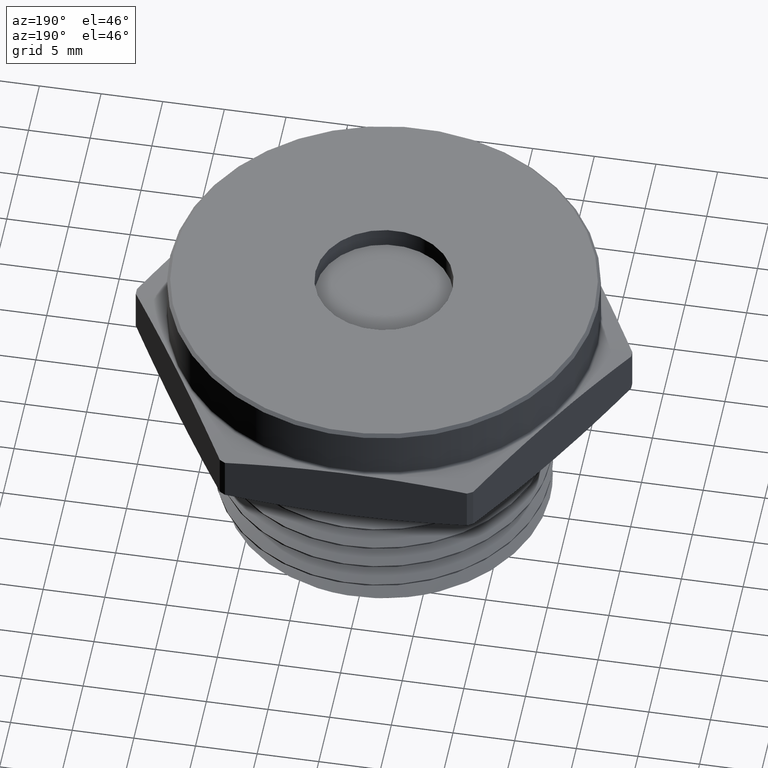
[diagram: clean part render]
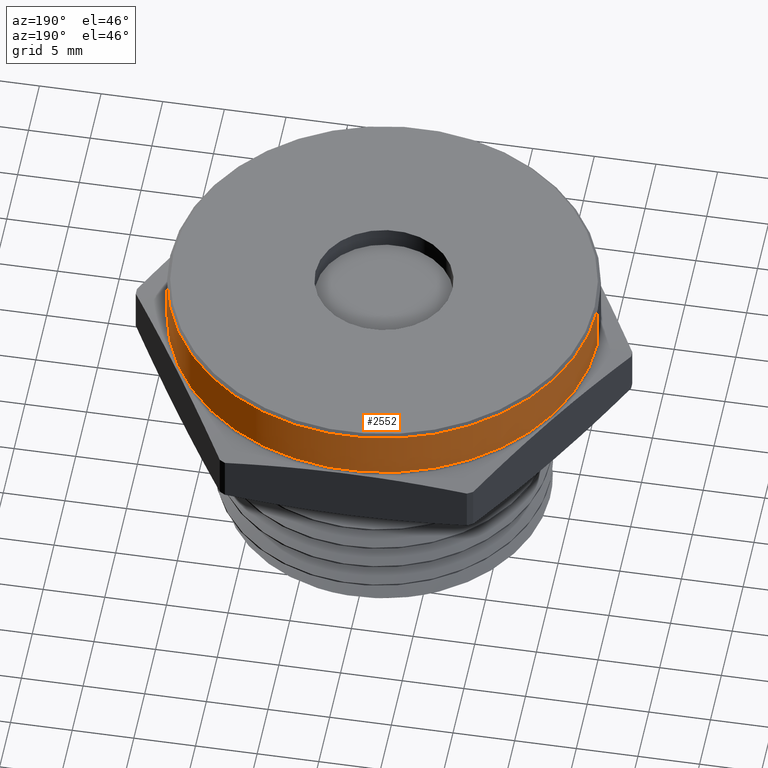
[diagram: same view with one face highlighted and labeled with its STEP entity id]
A machine part, auxiliary view. The second image highlights one B-rep face of the part: STEP entity #2552.
In plain terms, the highlighted cylindrical surface (partial cylindrical patch) has radius 17.3355 mm, axis along (-0, -0, -1).
Its self-contained STEP definition (entity closure, byte-faithful):
#52 = VERTEX_POINT ( 'NONE', #2858 ) ;
#56 = VERTEX_POINT ( 'NONE', #2853 ) ;
#70 = VERTEX_POINT ( 'NONE', #2839 ) ;
#71 = VERTEX_POINT ( 'NONE', #2838 ) ;
#636 = DIRECTION ( 'NONE',  ( -1.000000000000000000, 0.0000000000000000000, 0.0000000000000000000 ) ) ;
#637 = CARTESIAN_POINT ( 'NONE',  ( 0.0000000000000000000, 0.0000000000000000000, 0.3599999999999999900 ) ) ;
#638 = DIRECTION ( 'NONE',  ( -0.0000000000000000000, -0.0000000000000000000, -1.000000000000000000 ) ) ;
#790 = ORIENTED_EDGE ( 'NONE', *, *, #2377, .T. ) ;
#911 = AXIS2_PLACEMENT_3D ( 'NONE', #2088, #2087, #2086 ) ;
#912 = AXIS2_PLACEMENT_3D ( 'NONE', #2082, #2081, #2080 ) ;
#961 = AXIS2_PLACEMENT_3D ( 'NONE', #637, #638, #636 ) ;
#1685 = EDGE_LOOP ( 'NONE', ( #790, #1699, #1700, #1701 ) ) ;
#1699 = ORIENTED_EDGE ( 'NONE', *, *, #2375, .T. ) ;
#1700 = ORIENTED_EDGE ( 'NONE', *, *, #2374, .T. ) ;
#1701 = ORIENTED_EDGE ( 'NONE', *, *, #2373, .F. ) ;
#1795 = LINE ( 'NONE', #2095, #1803 ) ;
#1801 = CIRCLE ( 'NONE', #911, 0.6825000000000004400 ) ;
#1802 = LINE ( 'NONE', #2089, #1806 ) ;
#1803 = VECTOR ( 'NONE', #2099, 39.37007874015748100 ) ;
#1804 = CIRCLE ( 'NONE', #912, 0.6825000000000004400 ) ;
#1806 = VECTOR ( 'NONE', #2091, 39.37007874015748100 ) ;
#1918 = FACE_OUTER_BOUND ( 'NONE', #1685, .T. ) ;
#1926 = CYLINDRICAL_SURFACE ( 'NONE', #961, 0.6825000000000004400 ) ;
#2080 = DIRECTION ( 'NONE',  ( 1.000000000000000000, 0.0000000000000000000, 0.0000000000000000000 ) ) ;
#2081 = DIRECTION ( 'NONE',  ( 0.0000000000000000000, 0.0000000000000000000, -1.000000000000000000 ) ) ;
#2082 = CARTESIAN_POINT ( 'NONE',  ( 0.0000000000000000000, 0.0000000000000000000, 0.3499999999999997000 ) ) ;
#2086 = DIRECTION ( 'NONE',  ( 1.000000000000000000, 0.0000000000000000000, -5.003384603780698600E-017 ) ) ;
#2087 = DIRECTION ( 'NONE',  ( 6.123233995736748800E-017, 0.0000000000000000000, 1.000000000000000000 ) ) ;
#2088 = CARTESIAN_POINT ( 'NONE',  ( 0.0000000000000000000, 0.0000000000000000000, 0.1964782722655601400 ) ) ;
#2089 = CARTESIAN_POINT ( 'NONE',  ( 0.6825000000000004400, 8.358214404180691200E-017, 0.3599999999999999900 ) ) ;
#2091 = DIRECTION ( 'NONE',  ( -0.0000000000000000000, -0.0000000000000000000, -1.000000000000000000 ) ) ;
#2095 = CARTESIAN_POINT ( 'NONE',  ( -0.6825000000000004400, 0.0000000000000000000, 0.3599999999999999900 ) ) ;
#2099 = DIRECTION ( 'NONE',  ( -0.0000000000000000000, -0.0000000000000000000, -1.000000000000000000 ) ) ;
#2373 = EDGE_CURVE ( 'NONE', #70, #52, #1795, .T. ) ;
#2374 = EDGE_CURVE ( 'NONE', #56, #52, #1801, .T. ) ;
#2375 = EDGE_CURVE ( 'NONE', #71, #56, #1802, .T. ) ;
#2377 = EDGE_CURVE ( 'NONE', #70, #71, #1804, .T. ) ;
#2552 = ADVANCED_FACE ( 'NONE', ( #1918 ), #1926, .T. ) ;
#2838 = CARTESIAN_POINT ( 'NONE',  ( 0.6825000000000004400, 8.358214404180691200E-017, 0.3499999999999997000 ) ) ;
#2839 = CARTESIAN_POINT ( 'NONE',  ( -0.6825000000000004400, 0.0000000000000000000, 0.3499999999999997000 ) ) ;
#2853 = CARTESIAN_POINT ( 'NONE',  ( 0.6825000000000004400, 8.358214404180691200E-017, 0.1964782722655600800 ) ) ;
#2858 = CARTESIAN_POINT ( 'NONE',  ( -0.6825000000000004400, 0.0000000000000000000, 0.1964782722655601700 ) ) ;